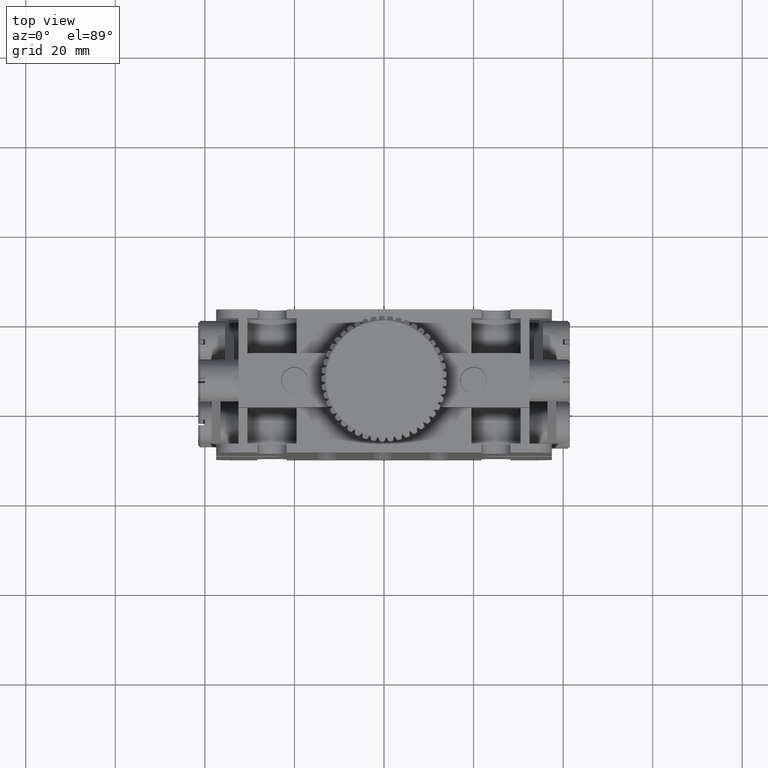
[diagram: clean part render]
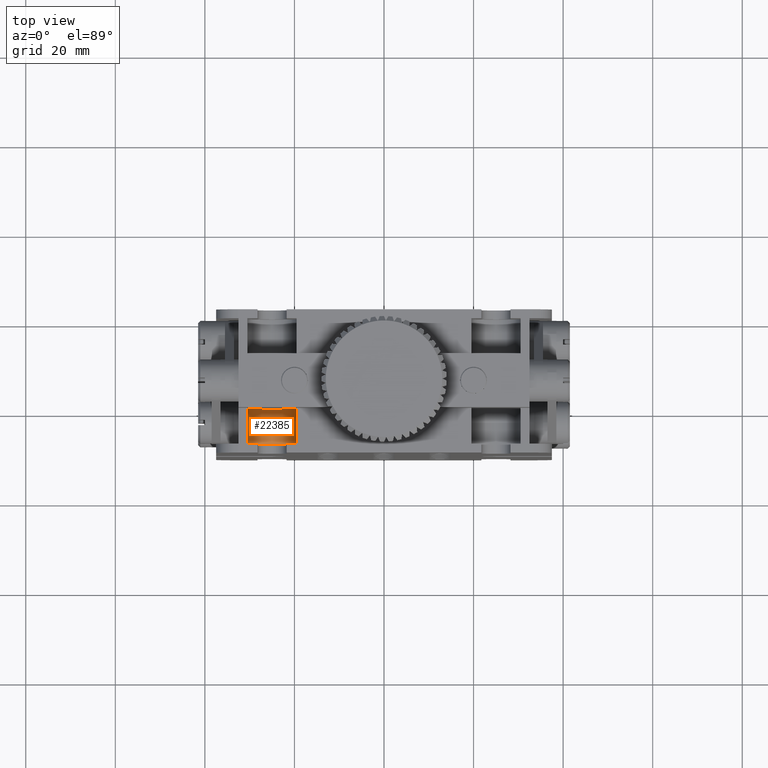
[diagram: same view with one face highlighted and labeled with its STEP entity id]
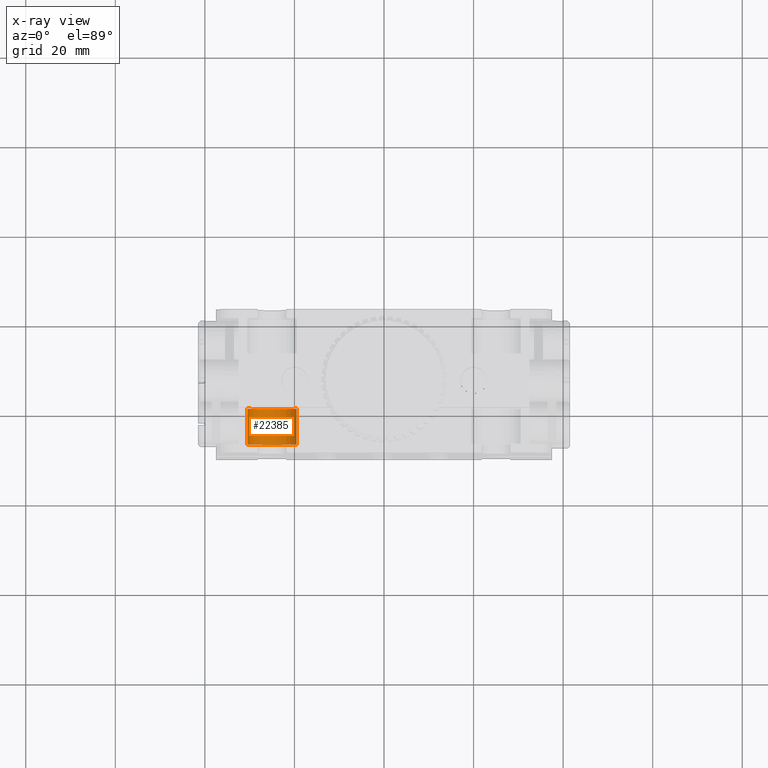
[diagram: x-ray of the same camera — body ghosted, the highlighted face saturated]
A machine part, top view. The second image highlights one B-rep face of the part: STEP entity #22385.
The next image is the same camera in x-ray: the body ghosted, the highlighted face saturated — about 0% of this face is hidden behind the body in this view.
In plain terms, the highlighted cylindrical surface (edge-blend (fillet) strip) has radius 5.5 mm, axis along (0, 1, -0).
Its self-contained STEP definition (entity closure, byte-faithful):
#789 = EDGE_CURVE ( 'NONE', #15044, #35734, #12747, .T. ) ;
#1639 = CARTESIAN_POINT ( 'NONE',  ( -25.00000000000044800, -8.000000000000000000, 37.49999999999980800 ) ) ;
#2663 = EDGE_CURVE ( 'NONE', #13425, #35734, #12897, .T. ) ;
#4484 = CARTESIAN_POINT ( 'NONE',  ( -30.50000000000001800, 9.089041035339982100E-017, 37.49999999999999300 ) ) ;
#4886 = DIRECTION ( 'NONE',  ( -1.000000000000000000, 0.0000000000000000000, 0.0000000000000000000 ) ) ;
#4894 = EDGE_CURVE ( 'NONE', #31478, #15044, #26601, .T. ) ;
#5583 = DIRECTION ( 'NONE',  ( 5.547388448313205200E-034, 1.000000000000000000, -2.423744276090650800E-018 ) ) ;
#6091 = AXIS2_PLACEMENT_3D ( 'NONE', #40833, #5583, #18507 ) ;
#10915 = DIRECTION ( 'NONE',  ( 5.547388448313205200E-034, 1.000000000000000000, -2.423744276090650800E-018 ) ) ;
#11596 = AXIS2_PLACEMENT_3D ( 'NONE', #1639, #24169, #4886 ) ;
#11656 = CARTESIAN_POINT ( 'NONE',  ( -19.50000000000000700, 9.089041035339983400E-017, 37.49999999999999300 ) ) ;
#12747 = CIRCLE ( 'NONE', #17346, 5.500000000000005300 ) ;
#12897 = LINE ( 'NONE', #30174, #29989 ) ;
#13425 = VERTEX_POINT ( 'NONE', #22193 ) ;
#13680 = ORIENTED_EDGE ( 'NONE', *, *, #4894, .T. ) ;
#14429 = DIRECTION ( 'NONE',  ( 5.547388448313205200E-034, 1.000000000000000000, -2.423744276090650800E-018 ) ) ;
#15044 = VERTEX_POINT ( 'NONE', #11656 ) ;
#16110 = VECTOR ( 'NONE', #20323, 1000.000000000000000 ) ;
#17346 = AXIS2_PLACEMENT_3D ( 'NONE', #36896, #14429, #33716 ) ;
#18507 = DIRECTION ( 'NONE',  ( -1.000000000000000000, 0.0000000000000000000, 0.0000000000000000000 ) ) ;
#20323 = DIRECTION ( 'NONE',  ( 5.547388448313205200E-034, 1.000000000000000000, -2.423744276090650800E-018 ) ) ;
#20355 = FACE_OUTER_BOUND ( 'NONE', #29366, .T. ) ;
#22193 = CARTESIAN_POINT ( 'NONE',  ( -30.50000000000001800, -8.000000000000000000, 37.49999999999999300 ) ) ;
#22241 = CARTESIAN_POINT ( 'NONE',  ( -19.50000000000000700, -8.000000000000000000, 37.49999999999999300 ) ) ;
#22385 = ADVANCED_FACE ( 'NONE', ( #20355 ), #33420, .F. ) ;
#24169 = DIRECTION ( 'NONE',  ( -5.547388448313205200E-034, -1.000000000000000000, 2.423744276090650800E-018 ) ) ;
#26601 = LINE ( 'NONE', #36331, #16110 ) ;
#27465 = CIRCLE ( 'NONE', #11596, 5.500000000000005300 ) ;
#29366 = EDGE_LOOP ( 'NONE', ( #38060, #13680, #36164, #41069 ) ) ;
#29989 = VECTOR ( 'NONE', #10915, 1000.000000000000000 ) ;
#30174 = CARTESIAN_POINT ( 'NONE',  ( -30.50000000000001800, -29.09502310972938200, 37.49999999999999300 ) ) ;
#31478 = VERTEX_POINT ( 'NONE', #22241 ) ;
#33420 = CYLINDRICAL_SURFACE ( 'NONE', #6091, 5.500000000000005300 ) ;
#33716 = DIRECTION ( 'NONE',  ( -1.000000000000000000, 0.0000000000000000000, 0.0000000000000000000 ) ) ;
#34249 = EDGE_CURVE ( 'NONE', #13425, #31478, #27465, .T. ) ;
#35734 = VERTEX_POINT ( 'NONE', #4484 ) ;
#36164 = ORIENTED_EDGE ( 'NONE', *, *, #789, .T. ) ;
#36331 = CARTESIAN_POINT ( 'NONE',  ( -19.50000000000000700, -29.09502310972938200, 37.49999999999999300 ) ) ;
#36896 = CARTESIAN_POINT ( 'NONE',  ( -25.00000000000044800, 9.089041035339940200E-017, 37.49999999999980800 ) ) ;
#38060 = ORIENTED_EDGE ( 'NONE', *, *, #34249, .T. ) ;
#40833 = CARTESIAN_POINT ( 'NONE',  ( -25.00000000000044800, -29.09502310972938200, 37.49999999999980800 ) ) ;
#41069 = ORIENTED_EDGE ( 'NONE', *, *, #2663, .F. ) ;